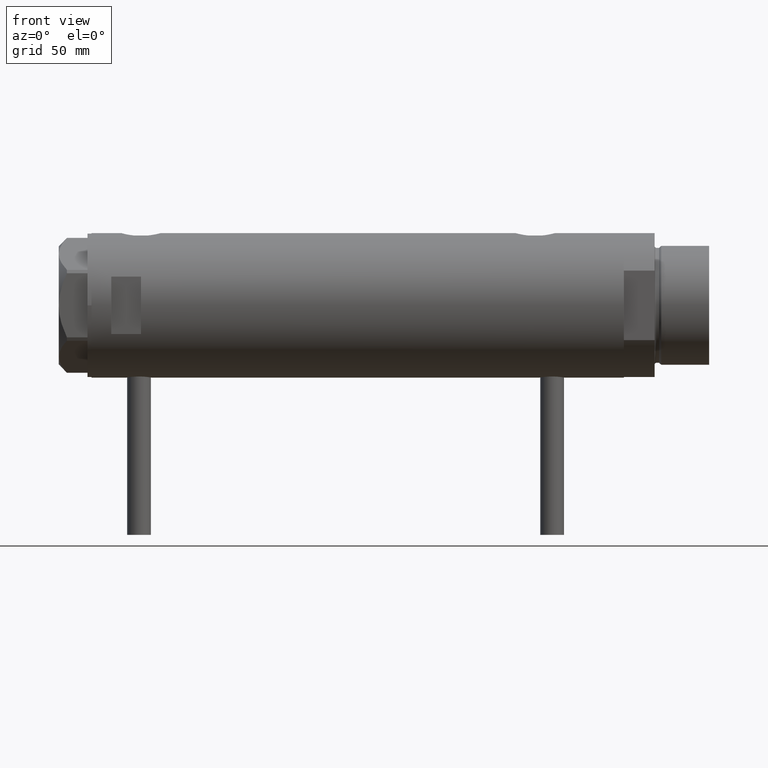
[diagram: clean part render]
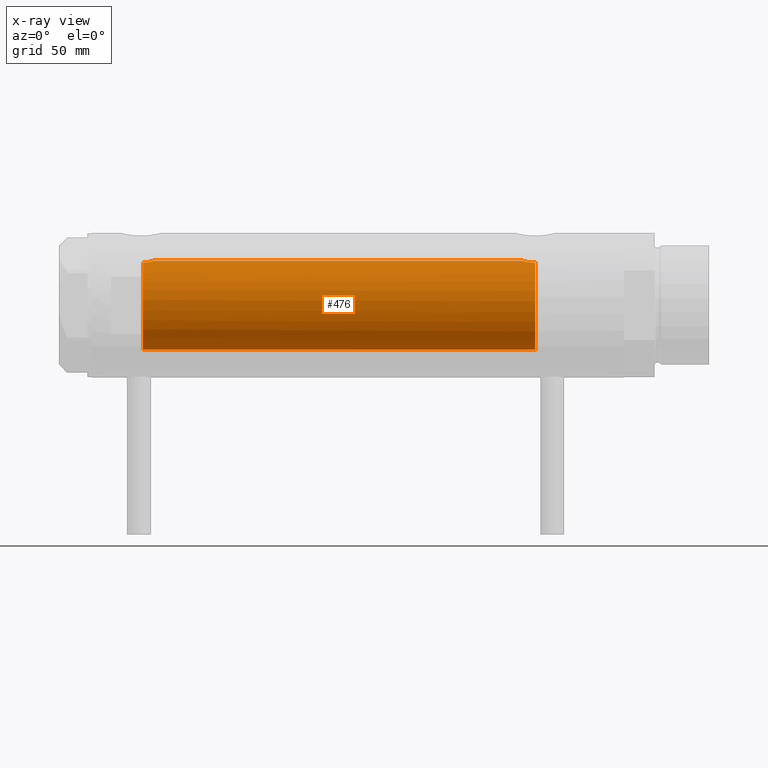
[diagram: x-ray — body ghosted, one internal face saturated and labeled with its STEP entity id]
A machine part, front view, then the same camera in x-ray: the body is ghosted and one INTERNAL B-rep face — a face not visible from any outside direction — is saturated and labeled: STEP entity #476.
In plain terms, the highlighted cylindrical surface (partial cylindrical patch) has radius 22.5 mm, axis along (1, 0, -0).
Its self-contained STEP definition (entity closure, byte-faithful):
#11 = CARTESIAN_POINT ( 'NONE',  ( 21.53958216864941733, -6.503568251352485952, 108.5000000000000142 ) ) ;
#38 = CARTESIAN_POINT ( 'NONE',  ( 21.58601844322714669, -6.349099877921651647, 107.7290481141031933 ) ) ;
#54 = CARTESIAN_POINT ( 'NONE',  ( 22.50000000000000355, 0.000000000000000000, 102.9200000000000159 ) ) ;
#102 = CARTESIAN_POINT ( 'NONE',  ( 22.50000000000000355, -0.3950131823107573270, 102.9200000000000301 ) ) ;
#117 = CARTESIAN_POINT ( 'NONE',  ( -22.44994432064365242, -1.499999999999989786, 108.5000000000000142 ) ) ;
#167 = CARTESIAN_POINT ( 'NONE',  ( -22.50000000000000355, 3.061617244149333364E-16, 108.0000000000000142 ) ) ;
#282 = CARTESIAN_POINT ( 'NONE',  ( 22.50000000000000711, -0.2154191524768910848, -83.12000000000001876 ) ) ;
#305 = CARTESIAN_POINT ( 'NONE',  ( 21.52981735982749711, -6.536420260328984710, -88.82962480407471162 ) ) ;
#312 = VECTOR ( 'NONE', #2116, 1000.000000000000000 ) ;
#366 = CARTESIAN_POINT ( 'NONE',  ( 22.44752031034920492, -1.547413406105163203, 103.1015621785797265 ) ) ;
#376 = CARTESIAN_POINT ( 'NONE',  ( -22.50000000000000355, 0.000000000000000000, 134.5000000000000000 ) ) ;
#423 = CARTESIAN_POINT ( 'NONE',  ( -22.44994432064365242, -1.499999999999989786, 108.5000000000000142 ) ) ;
#434 = CARTESIAN_POINT ( 'NONE',  ( 22.50000000000000355, 0.000000000000000000, 102.9200000000000159 ) ) ;
#441 = CARTESIAN_POINT ( 'NONE',  ( 21.53958216864941733, -6.503568251352485952, 108.5000000000000142 ) ) ;
#442 = CARTESIAN_POINT ( 'NONE',  ( 0.000000000000000000, 0.000000000000000000, 134.5000000000000000 ) ) ;
#476 = ADVANCED_FACE ( 'NONE', ( #4123 ), #811, .F. ) ;
#602 = ORIENTED_EDGE ( 'NONE', *, *, #711, .T. ) ;
#610 = B_SPLINE_CURVE_WITH_KNOTS ( 'NONE', 3,
 ( #117, #2314, #4168, #1984, #1214, #3812, #838, #1529 ),
 .UNSPECIFIED., .F., .F.,
 ( 4, 2, 2, 4 ),
 ( 0.006220300178549098037, 0.007021237910897099553, 0.007421706777071099444, 0.007822175643245100202 ),
 .UNSPECIFIED. ) ;
#643 = CARTESIAN_POINT ( 'NONE',  ( 21.68753676189998458, -5.992345198295746300, -86.97327232579068834 ) ) ;
#711 = EDGE_CURVE ( 'NONE', #2749, #4071, #3091, .T. ) ;
#729 = CARTESIAN_POINT ( 'NONE',  ( 21.85824266975972918, -5.341352339310155628, 105.6379574036161699 ) ) ;
#734 = ORIENTED_EDGE ( 'NONE', *, *, #1015, .F. ) ;
#778 = CARTESIAN_POINT ( 'NONE',  ( 22.40145249794127125, -2.111617392236895263, 103.2649554348197682 ) ) ;
#786 = VERTEX_POINT ( 'NONE', #167 ) ;
#811 = CYLINDRICAL_SURFACE ( 'NONE', #4475, 22.50000000000000355 ) ;
#838 = CARTESIAN_POINT ( 'NONE',  ( -22.50000000000001066, -0.1337055225816295712, 108.0000000000000284 ) ) ;
#949 = VECTOR ( 'NONE', #1484, 1000.000000000000000 ) ;
#1015 = EDGE_CURVE ( 'NONE', #2749, #786, #610, .T. ) ;
#1055 = CARTESIAN_POINT ( 'NONE',  ( 21.98210460142358968, -4.802207463187402325, -85.19652004334176354 ) ) ;
#1175 = LINE ( 'NONE', #376, #949 ) ;
#1182 = CARTESIAN_POINT ( 'NONE',  ( 0.000000000000000000, 0.000000000000000000, -89.70000000000000284 ) ) ;
#1206 = ORIENTED_EDGE ( 'NONE', *, *, #3311, .T. ) ;
#1214 = CARTESIAN_POINT ( 'NONE',  ( -22.49403986544133716, -0.5345788548553158659, 108.0541278093014483 ) ) ;
#1234 = VERTEX_POINT ( 'NONE', #54 ) ;
#1236 = EDGE_CURVE ( 'NONE', #1234, #4071, #2985, .T. ) ;
#1364 = CARTESIAN_POINT ( 'NONE',  ( 21.51635656889892800, -6.580000000000002736, -89.70000000000000284 ) ) ;
#1384 = LINE ( 'NONE', #2184, #312 ) ;
#1441 = ORIENTED_EDGE ( 'NONE', *, *, #1589, .T. ) ;
#1484 = DIRECTION ( 'NONE',  ( -0.000000000000000000, -0.000000000000000000, -1.000000000000000000 ) ) ;
#1529 = CARTESIAN_POINT ( 'NONE',  ( -22.50000000000000355, 3.061617244149333364E-16, 108.0000000000000142 ) ) ;
#1589 = EDGE_CURVE ( 'NONE', #1234, #4251, #1384, .T. ) ;
#1729 = CARTESIAN_POINT ( 'NONE',  ( 21.85557760450272013, -5.347779544816336994, -85.86030284772026278 ) ) ;
#1750 = CARTESIAN_POINT ( 'NONE',  ( 22.07839819281284477, -4.346355962099932135, -84.74115912649136817 ) ) ;
#1776 = CARTESIAN_POINT ( 'NONE',  ( 21.88647530142791808, -5.220320393727287289, -85.68868086085049640 ) ) ;
#1802 = CARTESIAN_POINT ( 'NONE',  ( 22.25875518649490559, -3.305696985817205835, -83.99458010501986394 ) ) ;
#1838 = CARTESIAN_POINT ( 'NONE',  ( 22.22503367403958663, -3.510871893734214932, 103.9315576783196917 ) ) ;
#1852 = AXIS2_PLACEMENT_3D ( 'NONE', #2786, #3123, #4246 ) ;
#1984 = CARTESIAN_POINT ( 'NONE',  ( -22.49055119298212446, -0.6642057183733610648, 108.0861530536189861 ) ) ;
#2093 = CARTESIAN_POINT ( 'NONE',  ( 21.76737372098157763, -5.695831585513579043, -86.39847891606889618 ) ) ;
#2116 = DIRECTION ( 'NONE',  ( -0.000000000000000000, -0.000000000000000000, -1.000000000000000000 ) ) ;
#2120 = CARTESIAN_POINT ( 'NONE',  ( 22.49690699366424695, -0.4310528819996864991, -83.13055249859414175 ) ) ;
#2139 = CARTESIAN_POINT ( 'NONE',  ( 22.50000000000000355, 8.058593785575293352E-16, -83.12000000000000455 ) ) ;
#2166 = CARTESIAN_POINT ( 'NONE',  ( 21.79602751566978824, -5.585535159907477620, -86.21520197735674174 ) ) ;
#2184 = CARTESIAN_POINT ( 'NONE',  ( 22.50000000000000355, 2.755455298081545172E-15, 134.5000000000000000 ) ) ;
#2200 = CARTESIAN_POINT ( 'NONE',  ( 22.45982135096091525, -1.357617207441327301, 103.0586442640378237 ) ) ;
#2261 = CARTESIAN_POINT ( 'NONE',  ( 21.97180182460413889, -4.853116730831949610, 105.0398793933508870 ) ) ;
#2263 = CARTESIAN_POINT ( 'NONE',  ( 21.51635656889892800, -6.580000000000002736, -89.70000000000000284 ) ) ;
#2314 = CARTESIAN_POINT ( 'NONE',  ( -22.46419909496996326, -1.286654073380656405, 108.3399905550355271 ) ) ;
#2359 = DIRECTION ( 'NONE',  ( -1.000000000000000000, 0.000000000000000000, 0.000000000000000000 ) ) ;
#2561 = CARTESIAN_POINT ( 'NONE',  ( 21.61760927586798431, -6.241696587716365485, -87.57279459237281571 ) ) ;
#2565 = VERTEX_POINT ( 'NONE', #3144 ) ;
#2581 = CARTESIAN_POINT ( 'NONE',  ( 22.14407575385478921, -3.989443360685411832, 104.2637256297126385 ) ) ;
#2591 = CARTESIAN_POINT ( 'NONE',  ( 21.58054822171799714, -6.366927345060002352, -87.98402244069207256 ) ) ;
#2653 = CARTESIAN_POINT ( 'NONE',  ( 22.11568811446340277, -4.143519122923664533, 104.3848050441609274 ) ) ;
#2662 = ORIENTED_EDGE ( 'NONE', *, *, #3593, .F. ) ;
#2705 = ORIENTED_EDGE ( 'NONE', *, *, #1236, .F. ) ;
#2749 = VERTEX_POINT ( 'NONE', #423 ) ;
#2786 = CARTESIAN_POINT ( 'NONE',  ( 0.000000000000000000, 0.000000000000000000, 108.5000000000000142 ) ) ;
#2985 = B_SPLINE_CURVE_WITH_KNOTS ( 'NONE', 3,
 ( #434, #102, #3679, #2200, #366, #3782, #778, #3423, #4510, #1838, #4528, #2581, #2653, #4042, #2261, #729, #3013, #4482, #3351, #38, #3324, #11 ),
 .UNSPECIFIED., .F., .F.,
 ( 4, 2, 2, 2, 2, 2, 2, 2, 2, 2, 4 ),
 ( 0.000000000000000000, 0.001167753031984884466, 0.001751629547977323013, 0.002335506063969761126, 0.003503259095954651663, 0.004087135611947107991, 0.004671012127939563885, 0.005838765159924475673, 0.007006518191909386593, 0.008174271223894297514, 0.009342024255879211037 ),
 .UNSPECIFIED. ) ;
#2986 = DIRECTION ( 'NONE',  ( -1.000000000000000000, 0.000000000000000000, 0.000000000000000000 ) ) ;
#3013 = CARTESIAN_POINT ( 'NONE',  ( 21.80246547822149239, -5.562416037700062432, 105.9635862820582588 ) ) ;
#3091 = CIRCLE ( 'NONE', #1852, 22.50000000000000355 ) ;
#3123 = DIRECTION ( 'NONE',  ( 0.000000000000000000, 0.000000000000000000, 1.000000000000000000 ) ) ;
#3144 = CARTESIAN_POINT ( 'NONE',  ( -22.50000000000000355, 0.000000000000000000, -89.70000000000000284 ) ) ;
#3218 = CARTESIAN_POINT ( 'NONE',  ( 21.94965745907476773, -4.947937303812818044, -85.35715039555711314 ) ) ;
#3269 = CARTESIAN_POINT ( 'NONE',  ( 22.14149984669489157, -4.016690124115201321, -84.47069324031264159 ) ) ;
#3293 = CARTESIAN_POINT ( 'NONE',  ( 22.31324851815826094, -2.920315458573307321, -83.78792883542266168 ) ) ;
#3311 = EDGE_CURVE ( 'NONE', #4183, #2565, #4028, .T. ) ;
#3324 = CARTESIAN_POINT ( 'NONE',  ( 21.55747828655794507, -6.444296957919021018, 108.1145250978095333 ) ) ;
#3351 = CARTESIAN_POINT ( 'NONE',  ( 21.65869182728109621, -6.096583454856811635, 106.9942047130795828 ) ) ;
#3423 = CARTESIAN_POINT ( 'NONE',  ( 22.34502592404423638, -2.661921217589550803, 103.4697586785212167 ) ) ;
#3555 = EDGE_CURVE ( 'NONE', #4183, #4251, #4087, .T. ) ;
#3593 = EDGE_CURVE ( 'NONE', #786, #2565, #1175, .T. ) ;
#3679 = CARTESIAN_POINT ( 'NONE',  ( 22.48961206562542259, -0.7836756559690466473, 102.9552765327437811 ) ) ;
#3782 = CARTESIAN_POINT ( 'NONE',  ( 22.41838729966076826, -1.923945741267791609, 103.2045311859534280 ) ) ;
#3801 = AXIS2_PLACEMENT_3D ( 'NONE', #1182, #4177, #2986 ) ;
#3812 = CARTESIAN_POINT ( 'NONE',  ( -22.49878002430316570, -0.2692609109014494906, 108.0109110326965975 ) ) ;
#3981 = CARTESIAN_POINT ( 'NONE',  ( 22.43844456282249666, -1.716722304487073636, -83.33314599255653832 ) ) ;
#4028 = CIRCLE ( 'NONE', #3801, 22.50000000000000355 ) ;
#4029 = CARTESIAN_POINT ( 'NONE',  ( 22.48448975507857384, -0.8627579744204254553, -83.17320172378663301 ) ) ;
#4042 = CARTESIAN_POINT ( 'NONE',  ( 22.03004750576872439, -4.584392313773037131, 104.7639649762144956 ) ) ;
#4051 = CARTESIAN_POINT ( 'NONE',  ( 21.71318796968428444, -5.899027407341884022, -86.77698536342958846 ) ) ;
#4071 = VERTEX_POINT ( 'NONE', #441 ) ;
#4087 = B_SPLINE_CURVE_WITH_KNOTS ( 'NONE', 3,
 ( #1364, #4781, #305, #2591, #2561, #643, #4051, #2093, #2166, #1729, #1776, #3218, #1055, #1750, #3269, #1802, #3293, #4762, #3981, #4389, #4029, #2120, #282, #2139 ),
 .UNSPECIFIED., .F., .F.,
 ( 4, 2, 2, 2, 2, 2, 2, 2, 2, 2, 2, 4 ),
 ( 0.01034583194474684824, 0.01163831905076679121, 0.01293080615678673592, 0.01357704970979672736, 0.01422329326280671880, 0.01486953681581670850, 0.01551578036882670167, 0.01680826747484668107, 0.01810075458086666048, 0.01939324168688664335, 0.02003948523989663652, 0.02068572879290662969 ),
 .UNSPECIFIED. ) ;
#4123 = FACE_OUTER_BOUND ( 'NONE', #4661, .T. ) ;
#4168 = CARTESIAN_POINT ( 'NONE',  ( -22.47718698759301859, -1.044180983668922424, 108.2128639435232458 ) ) ;
#4177 = DIRECTION ( 'NONE',  ( 0.000000000000000000, 0.000000000000000000, -1.000000000000000000 ) ) ;
#4183 = VERTEX_POINT ( 'NONE', #2263 ) ;
#4246 = DIRECTION ( 'NONE',  ( 1.000000000000000000, 0.000000000000000000, 0.000000000000000000 ) ) ;
#4251 = VERTEX_POINT ( 'NONE', #4576 ) ;
#4389 = CARTESIAN_POINT ( 'NONE',  ( 22.47508397315214523, -1.079737406574094560, -83.20558251353131141 ) ) ;
#4475 = AXIS2_PLACEMENT_3D ( 'NONE', #442, #4552, #2359 ) ;
#4482 = CARTESIAN_POINT ( 'NONE',  ( 21.70285280737213540, -5.939204755440065320, 106.6412343513558483 ) ) ;
#4510 = CARTESIAN_POINT ( 'NONE',  ( 22.30010606974974863, -3.011418659624944372, 103.6367890168579748 ) ) ;
#4528 = CARTESIAN_POINT ( 'NONE',  ( 22.19872433573119963, -3.673198495424855992, 104.0372314324827698 ) ) ;
#4552 = DIRECTION ( 'NONE',  ( -0.000000000000000000, -0.000000000000000000, -1.000000000000000000 ) ) ;
#4576 = CARTESIAN_POINT ( 'NONE',  ( 22.50000000000000355, 8.058593785575293352E-16, -83.12000000000000455 ) ) ;
#4630 = ORIENTED_EDGE ( 'NONE', *, *, #3555, .F. ) ;
#4661 = EDGE_LOOP ( 'NONE', ( #2705, #1441, #4630, #1206, #2662, #734, #602 ) ) ;
#4762 = CARTESIAN_POINT ( 'NONE',  ( 22.40278435593408091, -2.127100118045536892, -83.45850395174201708 ) ) ;
#4781 = CARTESIAN_POINT ( 'NONE',  ( 21.51635656889893511, -6.580000000000002736, -89.26825681860745476 ) ) ;